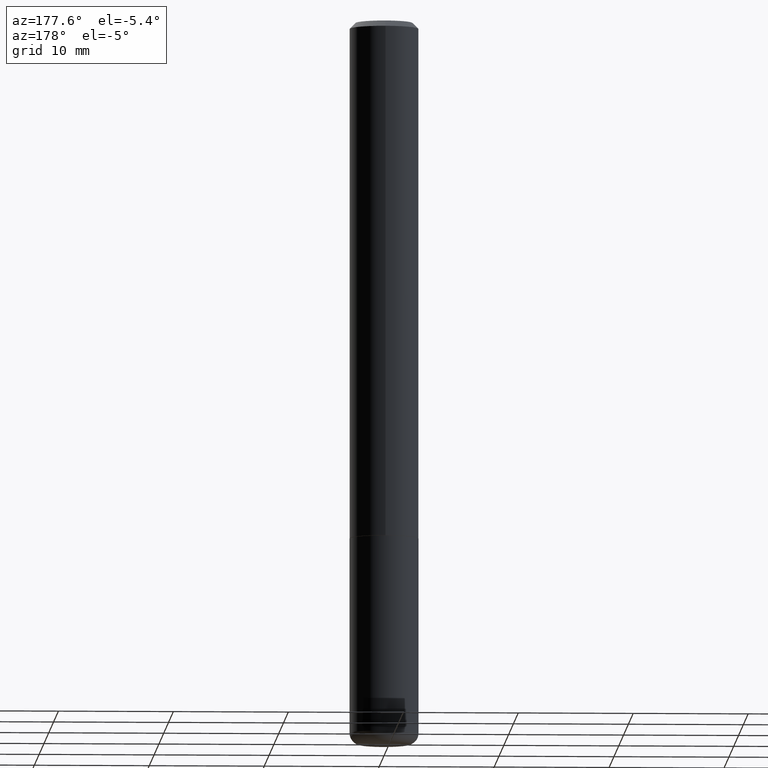
[diagram: clean part render]
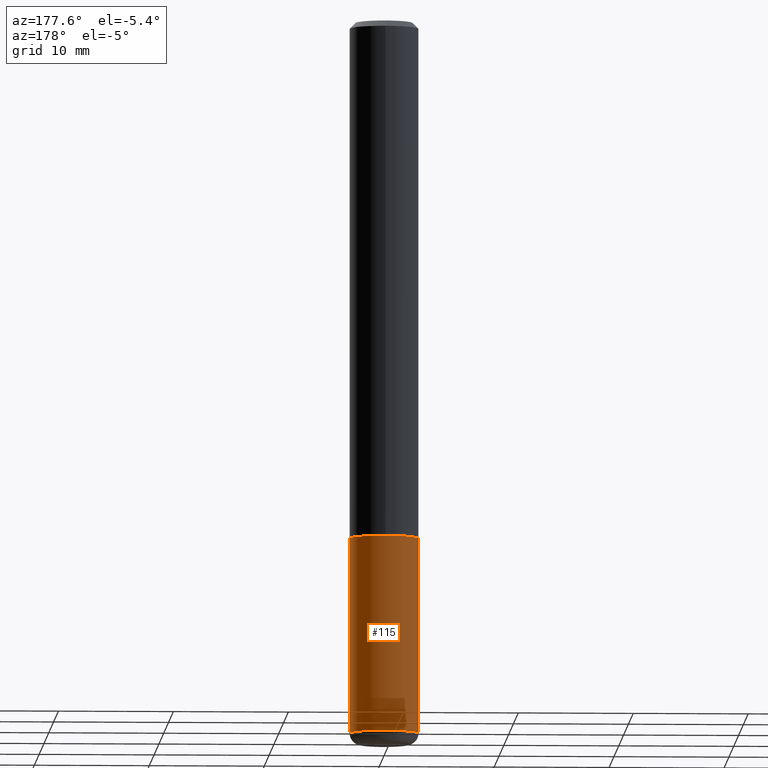
[diagram: same view with one face highlighted and labeled with its STEP entity id]
A machine part, auxiliary view. The second image highlights one B-rep face of the part: STEP entity #115.
In plain terms, the highlighted cylindrical surface (edge-blend (fillet) strip) has radius 2.9997 mm, axis along (-0, 0, 1).
Its self-contained STEP definition (entity closure, byte-faithful):
#42 = EDGE_CURVE ( 'NONE', #199, #50, #121, .T. ) ;
#50 = VERTEX_POINT ( 'NONE', #205 ) ;
#53 = LINE ( 'NONE', #277, #404 ) ;
#64 = LINE ( 'NONE', #387, #202 ) ;
#65 = CARTESIAN_POINT ( 'NONE',  ( 0.1180999999999999966, -7.010196232129265043E-15, -1.771600000000000286 ) ) ;
#115 = ADVANCED_FACE ( 'NONE', ( #208 ), #278, .T. ) ;
#121 = CIRCLE ( 'NONE', #256, 0.1180999999999999966 ) ;
#127 = CARTESIAN_POINT ( 'NONE',  ( -0.1181000000000000383, -7.683205829049555557E-15, -2.440900000000000070 ) ) ;
#153 = AXIS2_PLACEMENT_3D ( 'NONE', #365, #266, #397 ) ;
#176 = DIRECTION ( 'NONE',  ( -2.445468806185136877E-29, 3.491481338843145188E-15, 1.000000000000000000 ) ) ;
#179 = DIRECTION ( 'NONE',  ( -2.445468806185136597E-29, 3.491481338843145583E-15, 1.000000000000000000 ) ) ;
#190 = ORIENTED_EDGE ( 'NONE', *, *, #414, .T. ) ;
#199 = VERTEX_POINT ( 'NONE', #65 ) ;
#202 = VECTOR ( 'NONE', #311, 39.37007874015748143 ) ;
#205 = CARTESIAN_POINT ( 'NONE',  ( -0.1180999999999999966, -6.514781599005697070E-15, -1.771600000000000286 ) ) ;
#208 = FACE_OUTER_BOUND ( 'NONE', #259, .T. ) ;
#210 = CARTESIAN_POINT ( 'NONE',  ( 0.000000000000000000, 0.000000000000000000, 0.000000000000000000 ) ) ;
#225 = CARTESIAN_POINT ( 'NONE',  ( 0.1181000000000000383, -9.347044692216982806E-15, -2.440900000000000070 ) ) ;
#226 = ORIENTED_EDGE ( 'NONE', *, *, #384, .F. ) ;
#239 = CARTESIAN_POINT ( 'NONE',  ( 4.332392537037588763E-29, -6.185508339894517569E-15, -1.771600000000000286 ) ) ;
#243 = VERTEX_POINT ( 'NONE', #225 ) ;
#256 = AXIS2_PLACEMENT_3D ( 'NONE', #239, #179, #335 ) ;
#259 = EDGE_LOOP ( 'NONE', ( #390, #190, #333, #226 ) ) ;
#266 = DIRECTION ( 'NONE',  ( -2.445468806185136597E-29, 3.491481338843145583E-15, 1.000000000000000000 ) ) ;
#274 = VERTEX_POINT ( 'NONE', #127 ) ;
#277 = CARTESIAN_POINT ( 'NONE',  ( 0.1180999999999999966, -8.246878922347480654E-16, 5.758764772215000440E-30 ) ) ;
#278 = CYLINDRICAL_SURFACE ( 'NONE', #331, 0.1180999999999999966 ) ;
#311 = DIRECTION ( 'NONE',  ( -2.445468806185136877E-29, 3.491481338843145188E-15, 1.000000000000000000 ) ) ;
#331 = AXIS2_PLACEMENT_3D ( 'NONE', #210, #344, #354 ) ;
#333 = ORIENTED_EDGE ( 'NONE', *, *, #42, .F. ) ;
#335 = DIRECTION ( 'NONE',  ( 1.000000000000000000, -6.982962677686265133E-15, 0.000000000000000000 ) ) ;
#337 = EDGE_CURVE ( 'NONE', #243, #274, #385, .T. ) ;
#344 = DIRECTION ( 'NONE',  ( -2.445468806185136597E-29, 3.491481338843145583E-15, 1.000000000000000000 ) ) ;
#354 = DIRECTION ( 'NONE',  ( 1.000000000000000000, -6.982962677686266711E-15, 4.876176775795936353E-29 ) ) ;
#365 = CARTESIAN_POINT ( 'NONE',  ( 5.969144809017300159E-29, -8.522356799982234543E-15, -2.440900000000000070 ) ) ;
#384 = EDGE_CURVE ( 'NONE', #243, #199, #53, .T. ) ;
#385 = CIRCLE ( 'NONE', #153, 0.1180999999999999966 ) ;
#387 = CARTESIAN_POINT ( 'NONE',  ( -0.1180999999999999966, 8.391509709326782957E-16, -5.809262341591043784E-30 ) ) ;
#390 = ORIENTED_EDGE ( 'NONE', *, *, #337, .T. ) ;
#397 = DIRECTION ( 'NONE',  ( 1.000000000000000000, -6.982962677686273021E-15, 0.000000000000000000 ) ) ;
#404 = VECTOR ( 'NONE', #176, 39.37007874015748143 ) ;
#414 = EDGE_CURVE ( 'NONE', #274, #50, #64, .T. ) ;